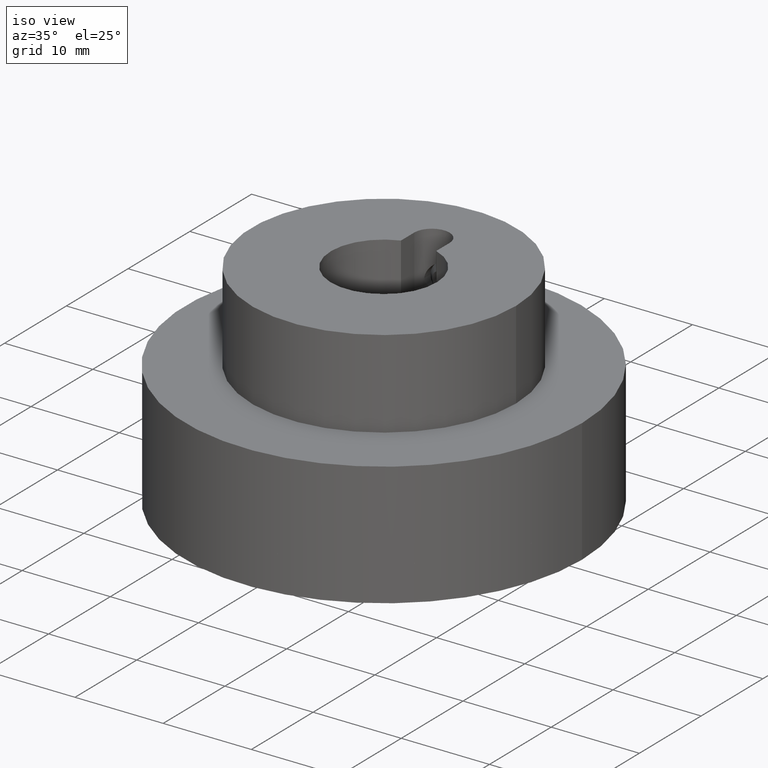
[diagram: clean part render]
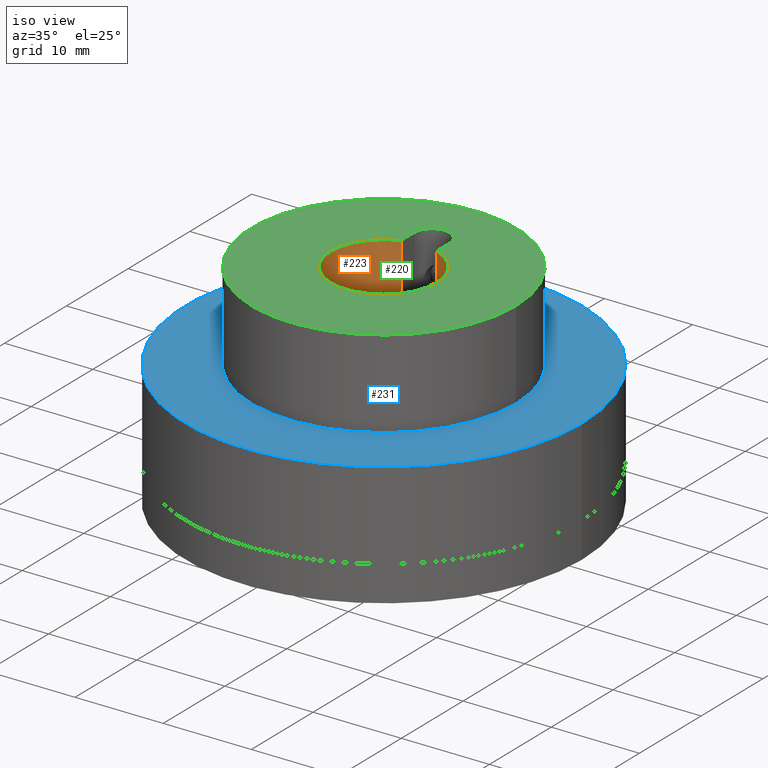
[diagram: same view with three faces highlighted in distinct colors, each labeled with its STEP entity id]
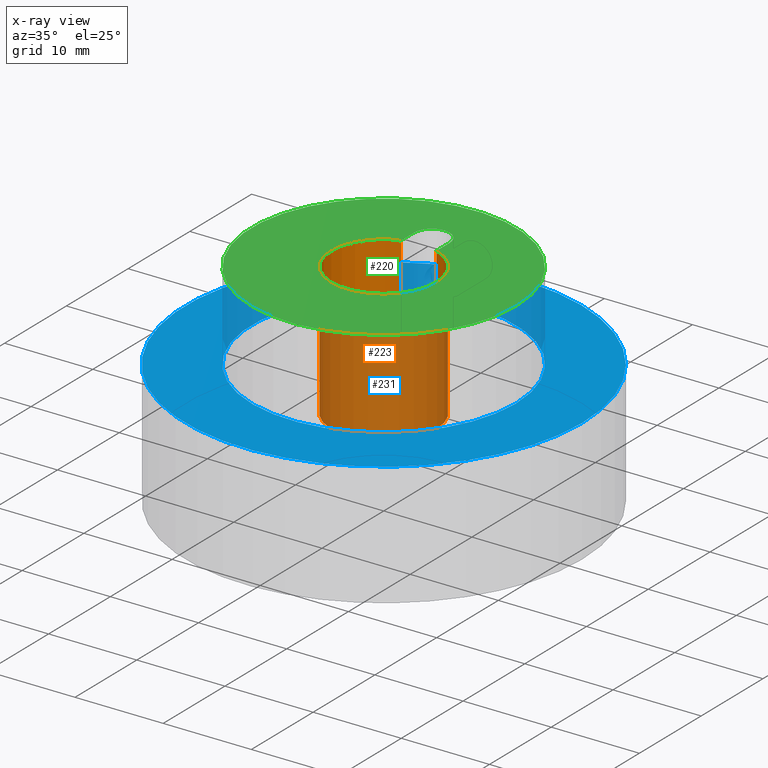
[diagram: x-ray of the same camera — body ghosted, the three highlighted faces saturated]
A machine part, iso view with three faces highlighted in distinct colors.
The next image is the same camera in x-ray (body ghosted, the three faces saturated) — at least one of them is partly hidden behind the body in this view.
Their STEP definitions:

[orange] entity #223 — the highlighted cylindrical surface (partial cylindrical patch) has radius 6 mm, axis along (-0, -0, -1).
#223 = ADVANCED_FACE( '', ( #267 ), #268, .F. );
#267 = FACE_OUTER_BOUND( '', #339, .T. );
#268 = CYLINDRICAL_SURFACE( '', #340, 6.00000000000000 );
#339 = EDGE_LOOP( '', ( #431, #432, #433, #434 ) );
#340 = AXIS2_PLACEMENT_3D( '', #435, #436, #437 );
#431 = ORIENTED_EDGE( '', *, *, #571, .F. );
#432 = ORIENTED_EDGE( '', *, *, #577, .F. );
#433 = ORIENTED_EDGE( '', *, *, #578, .T. );
#434 = ORIENTED_EDGE( '', *, *, #574, .T. );
#435 = CARTESIAN_POINT( '', ( 0.000000000000000, 0.000000000000000, -33.6017757712962 ) );
#436 = DIRECTION( '', ( -0.000000000000000, -0.000000000000000, -1.00000000000000 ) );
#437 = DIRECTION( '', ( -1.00000000000000, 6.12303176911189E-017, 0.000000000000000 ) );
#571 = EDGE_CURVE( '', #624, #619, #626, .F. );
#574 = EDGE_CURVE( '', #631, #619, #632, .T. );
#577 = EDGE_CURVE( '', #636, #624, #637, .T. );
#578 = EDGE_CURVE( '', #636, #631, #638, .F. );
#619 = VERTEX_POINT( '', #699 );
#624 = VERTEX_POINT( '', #705 );
#626 = CIRCLE( '', #708, 6.00000000000000 );
#631 = VERTEX_POINT( '', #713 );
#632 = LINE( '', #714, #715 );
#636 = VERTEX_POINT( '', #721 );
#637 = LINE( '', #722, #723 );
#638 = CIRCLE( '', #724, 6.00000000000000 );
#699 = CARTESIAN_POINT( '', ( -2.00000000000000, 5.65685424949238, 24.0000000000000 ) );
#705 = CARTESIAN_POINT( '', ( 2.00000000000000, 5.65685424949238, 24.0000000000000 ) );
#708 = AXIS2_PLACEMENT_3D( '', #945, #946, #947 );
#713 = CARTESIAN_POINT( '', ( -2.00000000000000, 5.65685424949238, 9.00000000000000 ) );
#714 = CARTESIAN_POINT( '', ( -2.00000000000000, 5.65685424949238, -33.6017757712962 ) );
#715 = VECTOR( '', #954, 1000.00000000000 );
#721 = CARTESIAN_POINT( '', ( 2.00000000000000, 5.65685424949238, 9.00000000000000 ) );
#722 = CARTESIAN_POINT( '', ( 2.00000000000000, 5.65685424949238, -33.6017757712962 ) );
#723 = VECTOR( '', #957, 1000.00000000000 );
#724 = AXIS2_PLACEMENT_3D( '', #958, #959, #960 );
#945 = CARTESIAN_POINT( '', ( 0.000000000000000, 0.000000000000000, 24.0000000000000 ) );
#946 = DIRECTION( '', ( 0.000000000000000, 0.000000000000000, 1.00000000000000 ) );
#947 = DIRECTION( '', ( 1.00000000000000, 0.000000000000000, -0.000000000000000 ) );
#954 = DIRECTION( '', ( 0.000000000000000, 0.000000000000000, 1.00000000000000 ) );
#957 = DIRECTION( '', ( 0.000000000000000, 0.000000000000000, 1.00000000000000 ) );
#958 = CARTESIAN_POINT( '', ( 0.000000000000000, 0.000000000000000, 9.00000000000000 ) );
#959 = DIRECTION( '', ( 0.000000000000000, 0.000000000000000, 1.00000000000000 ) );
#960 = DIRECTION( '', ( 1.00000000000000, 0.000000000000000, -0.000000000000000 ) );

[blue] entity #231 — the highlighted planar face has unit normal (0, 0, 1).
#231 = ADVANCED_FACE( '', ( #290, #291 ), #292, .T. );
#290 = FACE_BOUND( '', #362, .T. );
#291 = FACE_OUTER_BOUND( '', #363, .T. );
#292 = PLANE( '', #364 );
#362 = EDGE_LOOP( '', ( #482 ) );
#363 = EDGE_LOOP( '', ( #483 ) );
#364 = AXIS2_PLACEMENT_3D( '', #484, #485, #486 );
#482 = ORIENTED_EDGE( '', *, *, #582, .F. );
#483 = ORIENTED_EDGE( '', *, *, #572, .T. );
#484 = CARTESIAN_POINT( '', ( 0.000000000000000, 0.000000000000000, 14.0000000000000 ) );
#485 = DIRECTION( '', ( 0.000000000000000, 0.000000000000000, 1.00000000000000 ) );
#486 = DIRECTION( '', ( 1.00000000000000, 0.000000000000000, 0.000000000000000 ) );
#572 = EDGE_CURVE( '', #627, #627, #628, .T. );
#582 = EDGE_CURVE( '', #644, #644, #645, .T. );
#627 = VERTEX_POINT( '', #709 );
#628 = CIRCLE( '', #710, 22.5000000000000 );
#644 = VERTEX_POINT( '', #785 );
#645 = CIRCLE( '', #786, 15.0000000000000 );
#709 = CARTESIAN_POINT( '', ( 22.5000000000000, 0.000000000000000, 14.0000000000000 ) );
#710 = AXIS2_PLACEMENT_3D( '', #948, #949, #950 );
#785 = CARTESIAN_POINT( '', ( 15.0000000000000, 0.000000000000000, 14.0000000000000 ) );
#786 = AXIS2_PLACEMENT_3D( '', #963, #964, #965 );
#948 = CARTESIAN_POINT( '', ( 0.000000000000000, 0.000000000000000, 14.0000000000000 ) );
#949 = DIRECTION( '', ( 0.000000000000000, 0.000000000000000, 1.00000000000000 ) );
#950 = DIRECTION( '', ( 1.00000000000000, 0.000000000000000, 0.000000000000000 ) );
#963 = CARTESIAN_POINT( '', ( 0.000000000000000, 0.000000000000000, 14.0000000000000 ) );
#964 = DIRECTION( '', ( 0.000000000000000, 0.000000000000000, 1.00000000000000 ) );
#965 = DIRECTION( '', ( 1.00000000000000, 0.000000000000000, 0.000000000000000 ) );

[green] entity #220 — the highlighted planar face has unit normal (0, 0, 1).
#220 = ADVANCED_FACE( '', ( #259, #260 ), #261, .T. );
#259 = FACE_OUTER_BOUND( '', #331, .T. );
#260 = FACE_BOUND( '', #332, .T. );
#261 = PLANE( '', #333 );
#331 = EDGE_LOOP( '', ( #411 ) );
#332 = EDGE_LOOP( '', ( #412, #413, #414, #415 ) );
#333 = AXIS2_PLACEMENT_3D( '', #416, #417, #418 );
#411 = ORIENTED_EDGE( '', *, *, #567, .T. );
#412 = ORIENTED_EDGE( '', *, *, #568, .T. );
#413 = ORIENTED_EDGE( '', *, *, #569, .T. );
#414 = ORIENTED_EDGE( '', *, *, #570, .T. );
#415 = ORIENTED_EDGE( '', *, *, #571, .T. );
#416 = CARTESIAN_POINT( '', ( 0.000000000000000, 0.000000000000000, 24.0000000000000 ) );
#417 = DIRECTION( '', ( 0.000000000000000, 0.000000000000000, 1.00000000000000 ) );
#418 = DIRECTION( '', ( 1.00000000000000, 0.000000000000000, 0.000000000000000 ) );
#567 = EDGE_CURVE( '', #617, #617, #618, .T. );
#568 = EDGE_CURVE( '', #619, #620, #621, .T. );
#569 = EDGE_CURVE( '', #620, #622, #623, .F. );
#570 = EDGE_CURVE( '', #622, #624, #625, .T. );
#571 = EDGE_CURVE( '', #624, #619, #626, .F. );
#617 = VERTEX_POINT( '', #697 );
#618 = CIRCLE( '', #698, 15.0000000000000 );
#619 = VERTEX_POINT( '', #699 );
#620 = VERTEX_POINT( '', #700 );
#621 = LINE( '', #701, #702 );
#622 = VERTEX_POINT( '', #703 );
#623 = CIRCLE( '', #704, 2.00000000000000 );
#624 = VERTEX_POINT( '', #705 );
#625 = LINE( '', #706, #707 );
#626 = CIRCLE( '', #708, 6.00000000000000 );
#697 = CARTESIAN_POINT( '', ( 15.0000000000000, 0.000000000000000, 24.0000000000000 ) );
#698 = AXIS2_PLACEMENT_3D( '', #937, #938, #939 );
#699 = CARTESIAN_POINT( '', ( -2.00000000000000, 5.65685424949238, 24.0000000000000 ) );
#700 = CARTESIAN_POINT( '', ( -2.00000000000000, 7.80000000000001, 24.0000000000000 ) );
#701 = CARTESIAN_POINT( '', ( -2.00000000000000, 1.22460635382238E-016, 24.0000000000000 ) );
#702 = VECTOR( '', #940, 1000.00000000000 );
#703 = CARTESIAN_POINT( '', ( 2.00000000000000, 7.80000000000000, 24.0000000000000 ) );
#704 = AXIS2_PLACEMENT_3D( '', #941, #942, #943 );
#705 = CARTESIAN_POINT( '', ( 2.00000000000000, 5.65685424949238, 24.0000000000000 ) );
#706 = CARTESIAN_POINT( '', ( 2.00000000000000, -1.22460635382238E-016, 24.0000000000000 ) );
#707 = VECTOR( '', #944, 1000.00000000000 );
#708 = AXIS2_PLACEMENT_3D( '', #945, #946, #947 );
#937 = CARTESIAN_POINT( '', ( 0.000000000000000, 0.000000000000000, 24.0000000000000 ) );
#938 = DIRECTION( '', ( 0.000000000000000, 0.000000000000000, 1.00000000000000 ) );
#939 = DIRECTION( '', ( 1.00000000000000, 0.000000000000000, 0.000000000000000 ) );
#940 = DIRECTION( '', ( 6.12303176911189E-017, 1.00000000000000, -0.000000000000000 ) );
#941 = CARTESIAN_POINT( '', ( 0.000000000000000, 7.80000000000000, 24.0000000000000 ) );
#942 = DIRECTION( '', ( 0.000000000000000, 0.000000000000000, 1.00000000000000 ) );
#943 = DIRECTION( '', ( 1.00000000000000, 0.000000000000000, -0.000000000000000 ) );
#944 = DIRECTION( '', ( -6.12303176911189E-017, -1.00000000000000, 0.000000000000000 ) );
#945 = CARTESIAN_POINT( '', ( 0.000000000000000, 0.000000000000000, 24.0000000000000 ) );
#946 = DIRECTION( '', ( 0.000000000000000, 0.000000000000000, 1.00000000000000 ) );
#947 = DIRECTION( '', ( 1.00000000000000, 0.000000000000000, -0.000000000000000 ) );